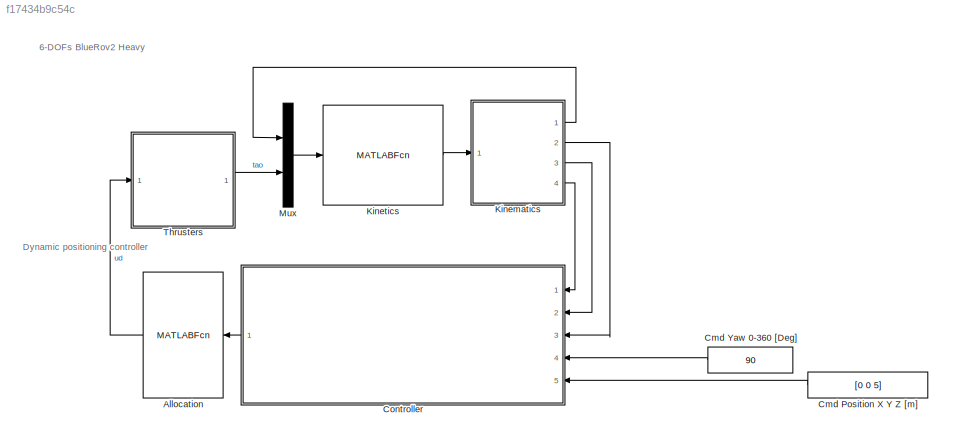
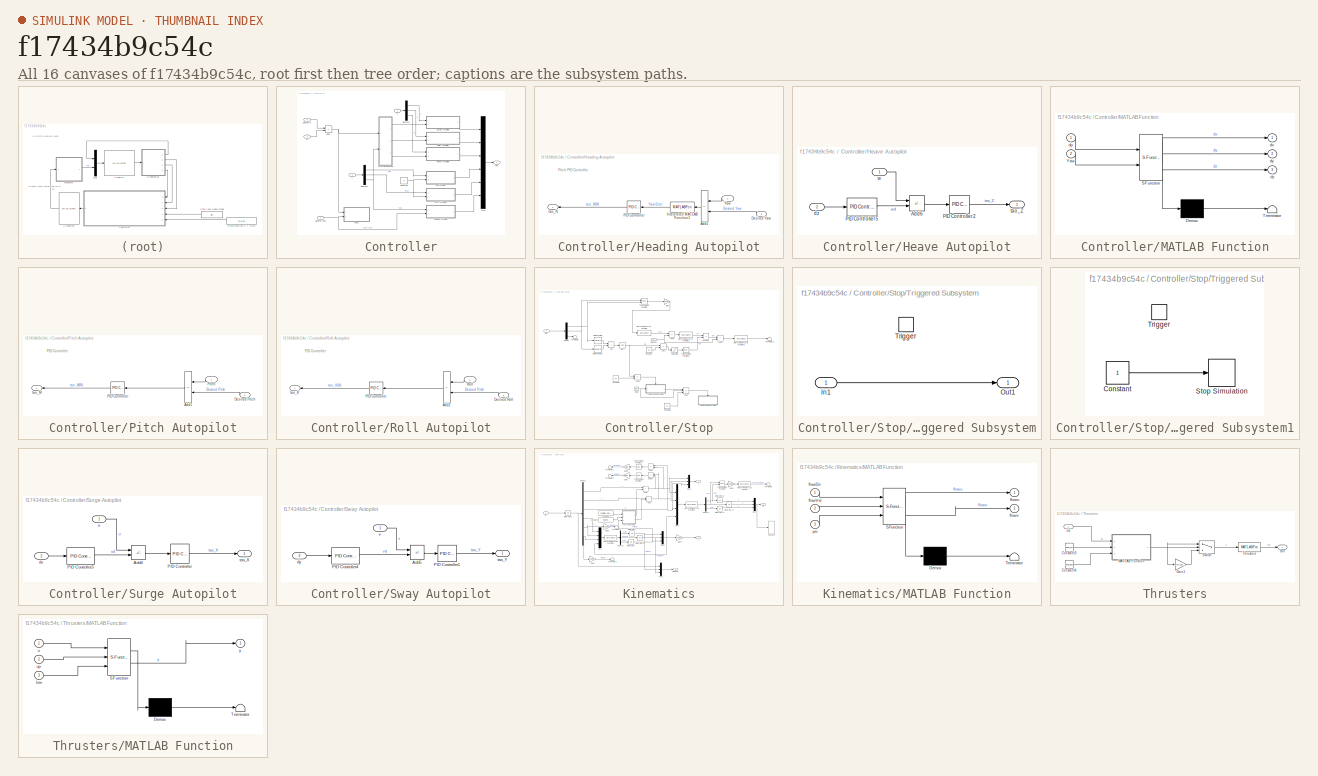
[diagram: thumbnail index - all 16 canvases of the model, root first then tree order]
MODEL slx_f17434b9c54c
KIND model
CONFIG AbsTol = auto
CONFIG EnableMultiTasking = off
CONFIG FixedStep = 0.05
CONFIG InitFcn = initModelParam;
CONFIG MaxStep = auto
CONFIG MinStep = auto
CONFIG RelTol = 1e-3
CONFIG SampleTimeConstraint = Unconstrained
CONFIG SolverName = ode4
CONFIG StartTime = 0.0
CONFIG StopFcn = %plotCoupled3DTrack;
CONFIG StopTime = 60
BLOCK [MATLABFcn] Allocation
  MATLABFcn = allocation
  OutputDimensions = 8
  OutputSignalType = real
  Ports = [1, 1]
BLOCK [Constant] Cmd Position X Y Z [m]
  NameLocation = top
  Value = [0 0 5]
BLOCK [Constant] Cmd Yaw 0-360 [Deg]
  NameLocation = top
  Value = 90
BLOCK [SubSystem] Controller
  Ports = [5, 1]
  RequestExecContextInheritance = off
BLOCK [Inport] Controller/A
  Port = 2
BLOCK [Sum] Controller/Add1
  IconShape = rectangular
  Inputs = +-
  Ports = [2, 1]
BLOCK [Constant] Controller/Constant
  Value = 0
BLOCK [Demux] Controller/Demux1
  Outputs = 3
  Ports = [1, 3]
BLOCK [Demux] Controller/Demux2
  Outputs = 3
  Ports = [1, 3]
BLOCK [Inport] Controller/Desired P
  Port = 5
BLOCK [Inport] Controller/Desired Yaw
  Port = 4
BLOCK [SubSystem] Controller/Heading Autopilot
  NameLocation = top
  Ports = [2, 1]
  RequestExecContextInheritance = off
BLOCK [Sum] Controller/Heading Autopilot/Add1
  IconShape = rectangular
  Inputs = -+
  NameLocation = top
  Ports = [2, 1]
BLOCK [Inport] Controller/Heading Autopilot/Desired Yaw
  Port = 2
BLOCK [MATLABFcn] Controller/Heading Autopilot/Interpreted MATLAB Function1
  MATLABFcn = OrientationErrorDegSat
  NameLocation = top
  OutputDimensions = 1
  Ports = [1, 1]
BLOCK [Reference] Controller/Heading Autopilot/PID Controller  REF=pid_lib/PID Controller
  NameLocation = top
  Ports = [1, 1]
  SourceBlock = pid_lib/PID Controller
  SourceProductBaseCode = SL
  SourceType = PID 1dof
BLOCK [Inport] Controller/Heading Autopilot/Yaw
BLOCK [Outport] Controller/Heading Autopilot/tao_N
  NameLocation = top
BLOCK [SubSystem] Controller/Heave Autopilot
  Ports = [2, 1]
  RequestExecContextInheritance = off
BLOCK [Sum] Controller/Heave Autopilot/Add6
  IconShape = rectangular
  Inputs = -+
  Ports = [2, 1]
BLOCK [Reference] Controller/Heave Autopilot/PID Controller2  REF=pid_lib/PID Controller
  Ports = [1, 1]
  SourceBlock = pid_lib/PID Controller
  SourceProductBaseCode = SL
  SourceType = PID 1dof
BLOCK [Reference] Controller/Heave Autopilot/PID Controller5  REF=pid_lib/PID Controller
  Ports = [1, 1]
  SourceBlock = pid_lib/PID Controller
  SourceProductBaseCode = SL
  SourceType = PID 1dof
BLOCK [Inport] Controller/Heave Autopilot/dz
  Port = 2
BLOCK [Outport] Controller/Heave Autopilot/tao_Z
BLOCK [Inport] Controller/Heave Autopilot/w
BLOCK [SubSystem] Controller/MATLAB Function
  ErrorFcn = Stateflow.Translate.translate
  PermitHierarchicalResolution = ExplicitOnly
  Ports = [2, 3]
  RequestExecContextInheritance = off
  SFBlockType = MATLAB Function
  TreatAsAtomicUnit = on
BLOCK [Demux] Controller/MATLAB Function/ Demux 
  Outputs = 1
  Ports = [1, 1]
BLOCK [S-Function] Controller/MATLAB Function/ SFunction 
  EnableBusSupport = on
  FunctionName = sf_sfun
  PortCounts = [2 4]
  Ports = [2, 4]
  SFcnIsStateOwnerBlock = off
  SFunctionDeploymentMode = off
  Tag = Stateflow S-Function 20
BLOCK [Terminator] Controller/MATLAB Function/ Terminator 
BLOCK [Inport] Controller/MATLAB Function/Yaw
  Port = 2
BLOCK [Inport] Controller/MATLAB Function/dp
BLOCK [Outport] Controller/MATLAB Function/dx
BLOCK [Outport] Controller/MATLAB Function/dy
  Port = 2
BLOCK [Outport] Controller/MATLAB Function/dz
  Port = 3
BLOCK [Mux] Controller/Mux
  DisplayOption = bar
  Inputs = 6
  Ports = [6, 1]
BLOCK [Inport] Controller/P
  Port = 3
BLOCK [SubSystem] Controller/Pitch Autopilot
  NameLocation = top
  Ports = [2, 1]
  RequestExecContextInheritance = off
BLOCK [Sum] Controller/Pitch Autopilot/Add1
  IconShape = rectangular
  Inputs = -+
  NameLocation = top
  Ports = [2, 1]
BLOCK [Inport] Controller/Pitch Autopilot/Desired Pitch
  Port = 2
BLOCK [Reference] Controller/Pitch Autopilot/PID Controller  REF=pid_lib/PID Controller
  NameLocation = top
  Ports = [1, 1]
  SourceBlock = pid_lib/PID Controller
  SourceProductBaseCode = SL
  SourceType = PID 1dof
BLOCK [Inport] Controller/Pitch Autopilot/Pitch
BLOCK [Outport] Controller/Pitch Autopilot/tao_M
  NameLocation = top
BLOCK [SubSystem] Controller/Roll Autopilot
  NameLocation = top
  Ports = [2, 1]
  RequestExecContextInheritance = off
BLOCK [Sum] Controller/Roll Autopilot/Add1
  IconShape = rectangular
  Inputs = -+
  NameLocation = top
  Ports = [2, 1]
BLOCK [Inport] Controller/Roll Autopilot/Desired Roll
  Port = 2
BLOCK [Reference] Controller/Roll Autopilot/PID Controller  REF=pid_lib/PID Controller
  NameLocation = top
  Ports = [1, 1]
  SourceBlock = pid_lib/PID Controller
  SourceProductBaseCode = SL
  SourceType = PID 1dof
BLOCK [Inport] Controller/Roll Autopilot/Roll
BLOCK [Outport] Controller/Roll Autopilot/tao_K
  NameLocation = top
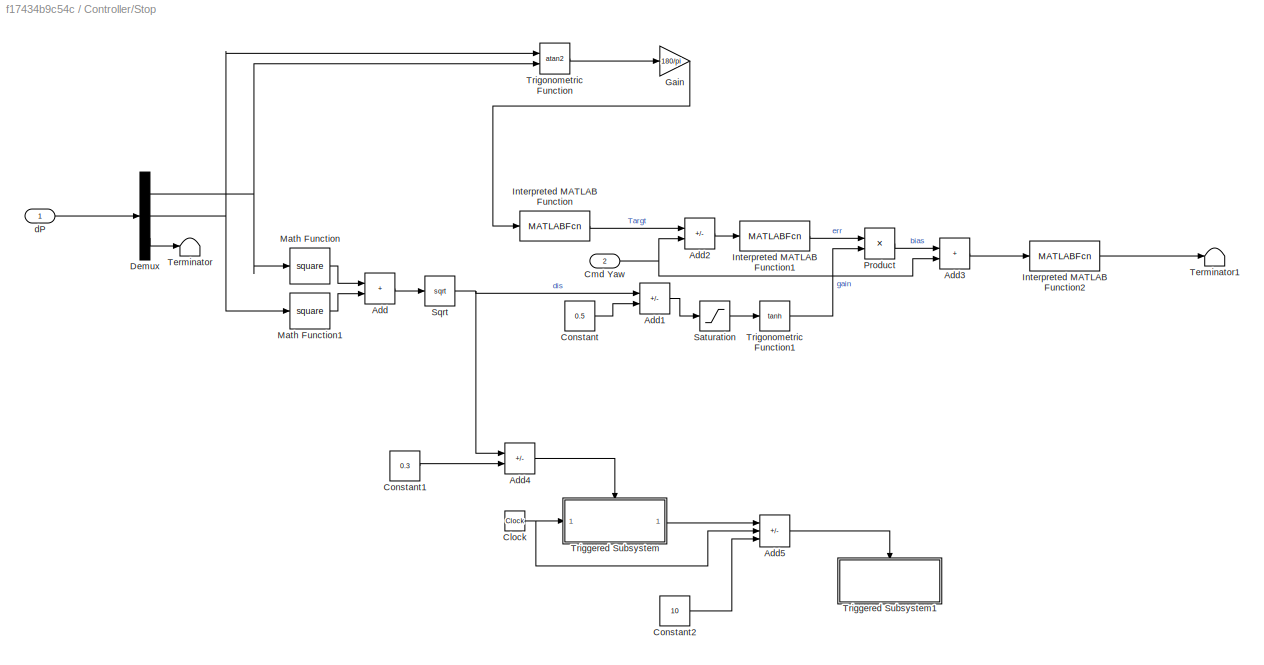
BLOCK [SubSystem] Controller/Stop
  Ports = [2]
  RequestExecContextInheritance = off
BLOCK [Sum] Controller/Stop/Add
  IconShape = rectangular
  Ports = [2, 1]
BLOCK [Sum] Controller/Stop/Add1
  Commented = on
  IconShape = rectangular
  Inputs = +-
  Ports = [2, 1]
BLOCK [Sum] Controller/Stop/Add2
  Commented = on
  IconShape = rectangular
  Inputs = +-
  Ports = [2, 1]
BLOCK [Sum] Controller/Stop/Add3
  Commented = on
  IconShape = rectangular
  Ports = [2, 1]
BLOCK [Sum] Controller/Stop/Add4
  IconShape = rectangular
  Inputs = +-
  Ports = [2, 1]
BLOCK [Sum] Controller/Stop/Add5
  IconShape = rectangular
  Inputs = -+-
  Ports = [3, 1]
BLOCK [Clock] Controller/Stop/Clock
BLOCK [Inport] Controller/Stop/Cmd Yaw
  Port = 2
BLOCK [Constant] Controller/Stop/Constant
  Commented = on
  Value = 0.5
BLOCK [Constant] Controller/Stop/Constant1
  Value = 0.3
BLOCK [Constant] Controller/Stop/Constant2
  Value = 10
BLOCK [Demux] Controller/Stop/Demux
  Outputs = 3
  Ports = [1, 3]
BLOCK [Gain] Controller/Stop/Gain
  Commented = on
  Gain = 180/pi
BLOCK [MATLABFcn] Controller/Stop/Interpreted MATLAB Function
  Commented = on
  MATLABFcn = OrientationDegSat
  OutputDimensions = 1
  Ports = [1, 1]
BLOCK [MATLABFcn] Controller/Stop/Interpreted MATLAB Function1
  Commented = on
  MATLABFcn = OrientationErrorDegSat
  OutputDimensions = 1
  Ports = [1, 1]
BLOCK [MATLABFcn] Controller/Stop/Interpreted MATLAB Function2
  Commented = on
  MATLABFcn = OrientationDegSat
  OutputDimensions = 1
  Ports = [1, 1]
BLOCK [Math] Controller/Stop/Math Function
  Operator = square
  Ports = [1, 1]
BLOCK [Math] Controller/Stop/Math Function1
  Operator = square
  Ports = [1, 1]
BLOCK [Product] Controller/Stop/Product
  Commented = on
  Ports = [2, 1]
BLOCK [Saturate] Controller/Stop/Saturation
  Commented = on
  LowerLimit = 0
  UpperLimit = inf
BLOCK [Sqrt] Controller/Stop/Sqrt
BLOCK [Terminator] Controller/Stop/Terminator
BLOCK [Terminator] Controller/Stop/Terminator1
BLOCK [SubSystem] Controller/Stop/Triggered Subsystem
  Ports = [1, 1, 0, 1]
  RequestExecContextInheritance = off
  TreatAsAtomicUnit = on
BLOCK [Inport] Controller/Stop/Triggered Subsystem/In1
BLOCK [Outport] Controller/Stop/Triggered Subsystem/Out1
  InitialOutput = 1000
BLOCK [TriggerPort] Controller/Stop/Triggered Subsystem/Trigger
  Ports = []
  StatesWhenEnabling = held
  TriggerType = falling
  VariantControl = Variant
BLOCK [SubSystem] Controller/Stop/Triggered Subsystem1
  Ports = [0, 0, 0, 1]
  RequestExecContextInheritance = off
  TreatAsAtomicUnit = on
BLOCK [Constant] Controller/Stop/Triggered Subsystem1/Constant
BLOCK [Stop] Controller/Stop/Triggered Subsystem1/Stop Simulation
BLOCK [TriggerPort] Controller/Stop/Triggered Subsystem1/Trigger
  Ports = []
  StatesWhenEnabling = held
  VariantControl = Variant
BLOCK [Trigonometry] Controller/Stop/Trigonometric Function
  Commented = on
  Operator = atan2
  Ports = [2, 1]
BLOCK [Trigonometry] Controller/Stop/Trigonometric Function1
  Commented = on
  Operator = tanh
  Ports = [1, 1]
BLOCK [Inport] Controller/Stop/dP
BLOCK [SubSystem] Controller/Surge Autopilot
  Ports = [2, 1]
  RequestExecContextInheritance = off
BLOCK [Sum] Controller/Surge Autopilot/Add4
  IconShape = rectangular
  Inputs = -+
  Ports = [2, 1]
BLOCK [Reference] Controller/Surge Autopilot/PID Controller  REF=pid_lib/PID Controller
  Ports = [1, 1]
  SourceBlock = pid_lib/PID Controller
  SourceProductBaseCode = SL
  SourceType = PID 1dof
BLOCK [Reference] Controller/Surge Autopilot/PID Controller3  REF=pid_lib/PID Controller
  Ports = [1, 1]
  SourceBlock = pid_lib/PID Controller
  SourceProductBaseCode = SL
  SourceType = PID 1dof
BLOCK [Inport] Controller/Surge Autopilot/dx
  Port = 2
BLOCK [Outport] Controller/Surge Autopilot/tao_X
BLOCK [Inport] Controller/Surge Autopilot/u
BLOCK [SubSystem] Controller/Sway Autopilot
  Ports = [2, 1]
  RequestExecContextInheritance = off
BLOCK [Sum] Controller/Sway Autopilot/Add5
  IconShape = rectangular
  Inputs = -+
  Ports = [2, 1]
BLOCK [Reference] Controller/Sway Autopilot/PID Controller1  REF=pid_lib/PID Controller
  Ports = [1, 1]
  SourceBlock = pid_lib/PID Controller
  SourceProductBaseCode = SL
  SourceType = PID 1dof
BLOCK [Reference] Controller/Sway Autopilot/PID Controller4  REF=pid_lib/PID Controller
  Ports = [1, 1]
  SourceBlock = pid_lib/PID Controller
  SourceProductBaseCode = SL
  SourceType = PID 1dof
BLOCK [Inport] Controller/Sway Autopilot/dy
  Port = 2
BLOCK [Outport] Controller/Sway Autopilot/tao_Y
BLOCK [Inport] Controller/Sway Autopilot/v
BLOCK [Inport] Controller/U
BLOCK [Outport] Controller/tao
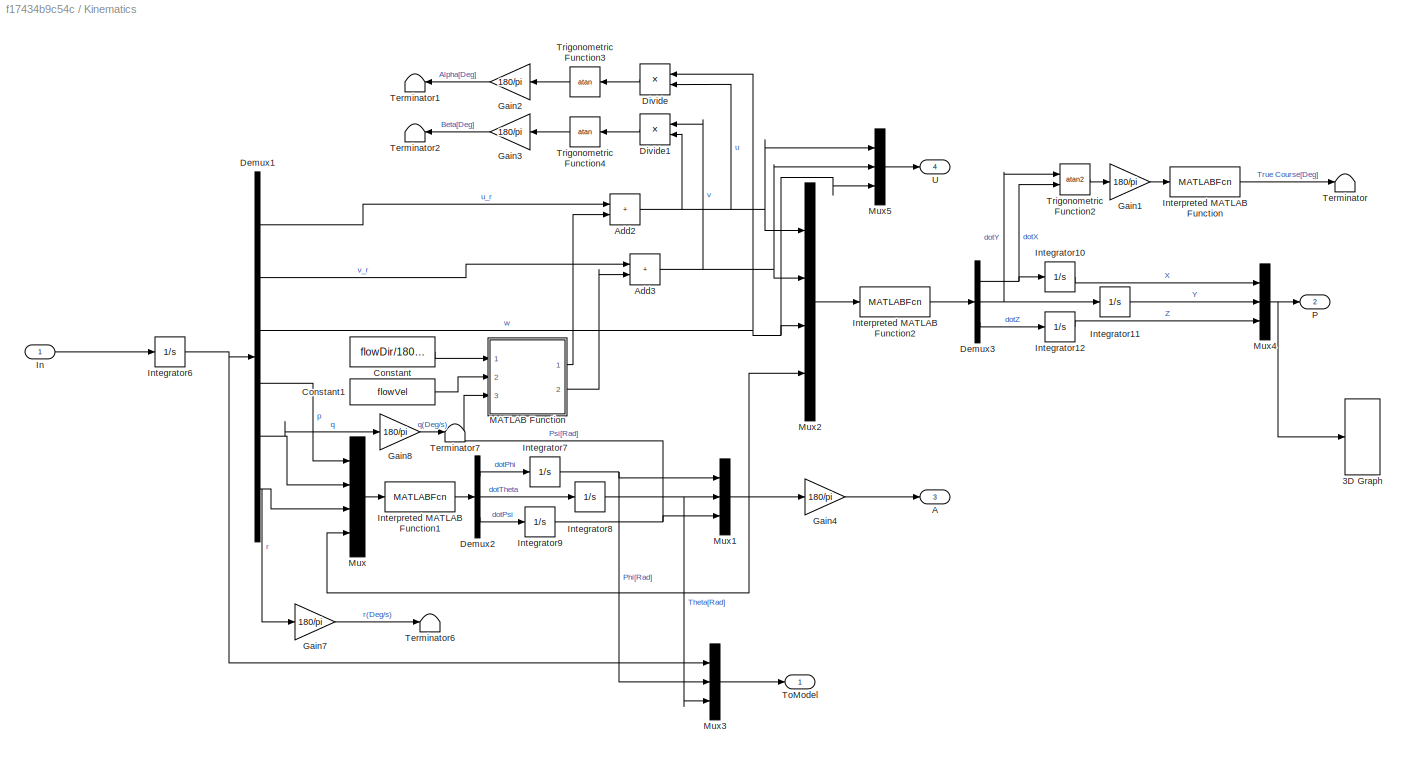
BLOCK [SubSystem] Kinematics
  Ports = [1, 4]
  RequestExecContextInheritance = off
BLOCK [S-Function] Kinematics/3D Graph
  Commented = on
  CopyFcn = if exist('sfun3d','file'), sfun3d([],[],[],'CopyBlock'); end
  DeleteFcn = if exist('sfun3d','file'), sfun3d([],[],[],'DeleteBlock'); end
  EnableBusSupport = off
  FunctionName = sfun3d
  LoadFcn = if exist('sfun3d','file'), sfun3d([],[],[],'LoadBlock'); end
  NameChangeFcn = if exist('sfun3d','file'), sfun3d([],[],[],'NameChange'); end
  Parameters = ax,T,np,cp,gd,ls,mk,mx,hd,tb
  Ports = [1]
  SFcnIsStateOwnerBlock = off
  SFunctionDeploymentMode = off
BLOCK [Outport] Kinematics/A
  Port = 3
BLOCK [Sum] Kinematics/Add2
  IconShape = rectangular
  Ports = [2, 1]
BLOCK [Sum] Kinematics/Add3
  IconShape = rectangular
  Ports = [2, 1]
BLOCK [Constant] Kinematics/Constant
  Value = flowDir/180*pi
BLOCK [Constant] Kinematics/Constant1
  Value = flowVel
BLOCK [Demux] Kinematics/Demux1
  Outputs = 6
  Ports = [1, 6]
BLOCK [Demux] Kinematics/Demux2
  Outputs = 3
  Ports = [1, 3]
BLOCK [Demux] Kinematics/Demux3
  Outputs = 3
  Ports = [1, 3]
BLOCK [Product] Kinematics/Divide
  Inputs = */
  NameLocation = top
  Ports = [2, 1]
BLOCK [Product] Kinematics/Divide1
  Inputs = */
  NameLocation = top
  Ports = [2, 1]
BLOCK [Gain] Kinematics/Gain1
  Gain = 180/pi
BLOCK [Gain] Kinematics/Gain2
  Gain = 180/pi
  NameLocation = top
BLOCK [Gain] Kinematics/Gain3
  Gain = 180/pi
  NameLocation = top
BLOCK [Gain] Kinematics/Gain4
  Gain = 180/pi
BLOCK [Gain] Kinematics/Gain7
  Gain = 180/pi
BLOCK [Gain] Kinematics/Gain8
  Gain = 180/pi
BLOCK [Inport] Kinematics/In
BLOCK [Integrator] Kinematics/Integrator10
  InitialCondition = x0
  Ports = [1, 1]
BLOCK [Integrator] Kinematics/Integrator11
  InitialCondition = y0
  Ports = [1, 1]
BLOCK [Integrator] Kinematics/Integrator12
  InitialCondition = z0
  Ports = [1, 1]
BLOCK [Integrator] Kinematics/Integrator6
  InitialCondition = [u0; 0; 0; 0; 0; 0]
  Ports = [1, 1]
BLOCK [Integrator] Kinematics/Integrator7
  Ports = [1, 1]
BLOCK [Integrator] Kinematics/Integrator8
  Ports = [1, 1]
BLOCK [Integrator] Kinematics/Integrator9
  InitialCondition = yaw0*pi/180
  Ports = [1, 1]
  WrapState = on
  WrappedStateLowerValue = 0
  WrappedStateUpperValue = 6.2832
BLOCK [MATLABFcn] Kinematics/Interpreted MATLAB Function
  MATLABFcn = OrientationDegSat
  Ports = [1, 1]
BLOCK [MATLABFcn] Kinematics/Interpreted MATLAB Function1
  MATLABFcn = TMatrix
  OutputDimensions = 3
  Ports = [1, 1]
BLOCK [MATLABFcn] Kinematics/Interpreted MATLAB Function2
  MATLABFcn = RMatrix
  OutputDimensions = 3
  Ports = [1, 1]
BLOCK [SubSystem] Kinematics/MATLAB Function
  ErrorFcn = Stateflow.Translate.translate
  PermitHierarchicalResolution = ExplicitOnly
  Ports = [3, 2]
  RequestExecContextInheritance = off
  SFBlockType = MATLAB Function
  TreatAsAtomicUnit = on
BLOCK [Demux] Kinematics/MATLAB Function/ Demux 
  Outputs = 1
  Ports = [1, 1]
BLOCK [S-Function] Kinematics/MATLAB Function/ SFunction 
  EnableBusSupport = on
  FunctionName = sf_sfun
  PortCounts = [3 3]
  Ports = [3, 3]
  SFcnIsStateOwnerBlock = off
  SFunctionDeploymentMode = off
  Tag = Stateflow S-Function 3
BLOCK [Terminator] Kinematics/MATLAB Function/ Terminator 
BLOCK [Inport] Kinematics/MATLAB Function/flowDir
BLOCK [Inport] Kinematics/MATLAB Function/flowVel
  Port = 2
BLOCK [Outport] Kinematics/MATLAB Function/flowu
BLOCK [Outport] Kinematics/MATLAB Function/flowv
  Port = 2
BLOCK [Inport] Kinematics/MATLAB Function/psi
  Port = 3
BLOCK [Mux] Kinematics/Mux
  DisplayOption = bar
  Ports = [4, 1]
BLOCK [Mux] Kinematics/Mux1
  DisplayOption = bar
  Inputs = 3
  Ports = [3, 1]
BLOCK [Mux] Kinematics/Mux2
  DisplayOption = bar
  Ports = [4, 1]
BLOCK [Mux] Kinematics/Mux3
  DisplayOption = bar
  Inputs = 3
  Ports = [3, 1]
BLOCK [Mux] Kinematics/Mux4
  DisplayOption = bar
  Inputs = 3
  Ports = [3, 1]
BLOCK [Mux] Kinematics/Mux5
  DisplayOption = bar
  Inputs = 3
  Ports = [3, 1]
BLOCK [Outport] Kinematics/P
  Port = 2
BLOCK [Terminator] Kinematics/Terminator
BLOCK [Terminator] Kinematics/Terminator1
  NameLocation = top
BLOCK [Terminator] Kinematics/Terminator2
  NameLocation = top
BLOCK [Terminator] Kinematics/Terminator6
BLOCK [Terminator] Kinematics/Terminator7
BLOCK [Outport] Kinematics/ToModel
BLOCK [Trigonometry] Kinematics/Trigonometric Function2
  Operator = atan2
  Ports = [2, 1]
BLOCK [Trigonometry] Kinematics/Trigonometric Function3
  NameLocation = top
  Operator = atan
  Ports = [1, 1]
BLOCK [Trigonometry] Kinematics/Trigonometric Function4
  NameLocation = top
  Operator = atan
  Ports = [1, 1]
BLOCK [Outport] Kinematics/U
  Port = 4
BLOCK [MATLABFcn] Kinetics
  MATLABFcn = AuvMathModel
  OutputDimensions = 6
  OutputSignalType = real
  Ports = [1, 1]
BLOCK [Mux] Mux
  DisplayOption = bar
  Inputs = 2
  Ports = [2, 1]
BLOCK [SubSystem] Thrusters
  Ports = [1, 1]
  RequestExecContextInheritance = off
BLOCK [Constant] Thrusters/Constant3
  Value = dead_up
BLOCK [Constant] Thrusters/Constant4
  Value = dead_low
BLOCK [Gain] Thrusters/Gain1
  Gain = asym_gain
BLOCK [SubSystem] Thrusters/MATLAB Function
  ErrorFcn = Stateflow.Translate.translate
  PermitHierarchicalResolution = ExplicitOnly
  Ports = [3, 1]
  RequestExecContextInheritance = off
  SFBlockType = MATLAB Function
  TreatAsAtomicUnit = on
BLOCK [Demux] Thrusters/MATLAB Function/ Demux 
  Outputs = 1
  Ports = [1, 1]
BLOCK [S-Function] Thrusters/MATLAB Function/ SFunction 
  EnableBusSupport = on
  FunctionName = sf_sfun
  PortCounts = [3 2]
  Ports = [3, 2]
  SFcnIsStateOwnerBlock = off
  SFunctionDeploymentMode = off
  Tag = Stateflow S-Function 5
BLOCK [Terminator] Thrusters/MATLAB Function/ Terminator 
BLOCK [Inport] Thrusters/MATLAB Function/low
  Port = 3
BLOCK [Inport] Thrusters/MATLAB Function/u
BLOCK [Inport] Thrusters/MATLAB Function/up
  Port = 2
BLOCK [Outport] Thrusters/MATLAB Function/y
BLOCK [Switch] Thrusters/Switch
  Criteria = u2 > Threshold
  InputSameDT = off
  SaturateOnIntegerOverflow = off
BLOCK [MATLABFcn] Thrusters/Thrusters
  MATLABFcn = thrusters
  OutputDimensions = 6
  OutputSignalType = real
  Ports = [1, 1]
BLOCK [Outport] Thrusters/tao
BLOCK [Inport] Thrusters/ud
  NameLocation = top
ANNOTATION (root): 6-DOFs BlueRov2 Heavy
ANNOTATION (root): Dynamic positioning controller
ANNOTATION Controller/Heading Autopilot: Pitch PID Controller
ANNOTATION Controller/Pitch Autopilot: PID Controller
ANNOTATION Controller/Roll Autopilot: PID Controller
LINE Allocation:1 -> Thrusters:1
LINE Cmd Position X Y Z [m]:1 -> Controller:5
LINE Cmd Yaw 0-360 [Deg]:1 -> Controller:4
LINE Controller/A:1 -> Controller/Demux1:1
NET Controller/Add1:1 -> Controller/MATLAB Function:1, Controller/Stop:1
NET Controller/Constant:1 -> Controller/Pitch Autopilot:2, Controller/Roll Autopilot:2
LINE Controller/Demux1:1 -> Controller/Roll Autopilot:1
LINE Controller/Demux1:2 -> Controller/Pitch Autopilot:1
NET Controller/Demux1:3 -> Controller/Heading Autopilot:1, Controller/MATLAB Function:2
LINE Controller/Demux2:1 -> Controller/Surge Autopilot:1
LINE Controller/Demux2:2 -> Controller/Sway Autopilot:1
LINE Controller/Demux2:3 -> Controller/Heave Autopilot:1
LINE Controller/Desired P:1 -> Controller/Add1:1
NET Controller/Desired Yaw:1 -> Controller/Heading Autopilot:2, Controller/Stop:2
LINE Controller/Heading Autopilot/Add1:1 -> Controller/Heading Autopilot/Interpreted MATLAB Function1:1
LINE Controller/Heading Autopilot/Desired Yaw:1 -> Controller/Heading Autopilot/Add1:2
LINE Controller/Heading Autopilot/Interpreted MATLAB Function1:1 -> Controller/Heading Autopilot/PID Controller:1
LINE Controller/Heading Autopilot/PID Controller:1 -> Controller/Heading Autopilot/tao_N:1
LINE Controller/Heading Autopilot/Yaw:1 -> Controller/Heading Autopilot/Add1:1
LINE Controller/Heading Autopilot:1 -> Controller/Mux:6
LINE Controller/Heave Autopilot/Add6:1 -> Controller/Heave Autopilot/PID Controller2:1
LINE Controller/Heave Autopilot/PID Controller2:1 -> Controller/Heave Autopilot/tao_Z:1
LINE Controller/Heave Autopilot/PID Controller5:1 -> Controller/Heave Autopilot/Add6:2
LINE Controller/Heave Autopilot/dz:1 -> Controller/Heave Autopilot/PID Controller5:1
LINE Controller/Heave Autopilot/w:1 -> Controller/Heave Autopilot/Add6:1
LINE Controller/Heave Autopilot:1 -> Controller/Mux:3
LINE Controller/MATLAB Function:1 -> Controller/Surge Autopilot:2
LINE Controller/MATLAB Function:2 -> Controller/Sway Autopilot:2
LINE Controller/MATLAB Function:3 -> Controller/Heave Autopilot:2
LINE Controller/Mux:1 -> Controller/tao:1
LINE Controller/P:1 -> Controller/Add1:2
LINE Controller/Pitch Autopilot/Add1:1 -> Controller/Pitch Autopilot/PID Controller:1
LINE Controller/Pitch Autopilot/Desired Pitch:1 -> Controller/Pitch Autopilot/Add1:2
LINE Controller/Pitch Autopilot/PID Controller:1 -> Controller/Pitch Autopilot/tao_M:1
LINE Controller/Pitch Autopilot/Pitch:1 -> Controller/Pitch Autopilot/Add1:1
LINE Controller/Pitch Autopilot:1 -> Controller/Mux:5
LINE Controller/Roll Autopilot/Add1:1 -> Controller/Roll Autopilot/PID Controller:1
LINE Controller/Roll Autopilot/Desired Roll:1 -> Controller/Roll Autopilot/Add1:2
LINE Controller/Roll Autopilot/PID Controller:1 -> Controller/Roll Autopilot/tao_K:1
LINE Controller/Roll Autopilot/Roll:1 -> Controller/Roll Autopilot/Add1:1
LINE Controller/Roll Autopilot:1 -> Controller/Mux:4
LINE Controller/Stop/Add1:1 -> Controller/Stop/Saturation:1
LINE Controller/Stop/Add2:1 -> Controller/Stop/Interpreted MATLAB Function1:1
LINE Controller/Stop/Add3:1 -> Controller/Stop/Interpreted MATLAB Function2:1
LINE Controller/Stop/Add4:1 -> Controller/Stop/Triggered Subsystem:trigger
LINE Controller/Stop/Add5:1 -> Controller/Stop/Triggered Subsystem1:trigger
LINE Controller/Stop/Add:1 -> Controller/Stop/Sqrt:1
NET Controller/Stop/Clock:1 -> Controller/Stop/Add5:2, Controller/Stop/Triggered Subsystem:1
NET Controller/Stop/Cmd Yaw:1 -> Controller/Stop/Add2:2, Controller/Stop/Add3:2
LINE Controller/Stop/Constant1:1 -> Controller/Stop/Add4:2
LINE Controller/Stop/Constant2:1 -> Controller/Stop/Add5:3
LINE Controller/Stop/Constant:1 -> Controller/Stop/Add1:2
NET Controller/Stop/Demux:1 -> Controller/Stop/Math Function:1, Controller/Stop/Trigonometric Function:2
NET Controller/Stop/Demux:2 -> Controller/Stop/Math Function1:1, Controller/Stop/Trigonometric Function:1
LINE Controller/Stop/Demux:3 -> Controller/Stop/Terminator:1
LINE Controller/Stop/Gain:1 -> Controller/Stop/Interpreted MATLAB Function:1
LINE Controller/Stop/Interpreted MATLAB Function1:1 -> Controller/Stop/Product:1
LINE Controller/Stop/Interpreted MATLAB Function2:1 -> Controller/Stop/Terminator1:1
LINE Controller/Stop/Interpreted MATLAB Function:1 -> Controller/Stop/Add2:1
LINE Controller/Stop/Math Function1:1 -> Controller/Stop/Add:2
LINE Controller/Stop/Math Function:1 -> Controller/Stop/Add:1
LINE Controller/Stop/Product:1 -> Controller/Stop/Add3:1
LINE Controller/Stop/Saturation:1 -> Controller/Stop/Trigonometric Function1:1
NET Controller/Stop/Sqrt:1 -> Controller/Stop/Add1:1, Controller/Stop/Add4:1
LINE Controller/Stop/Triggered Subsystem/In1:1 -> Controller/Stop/Triggered Subsystem/Out1:1
LINE Controller/Stop/Triggered Subsystem1/Constant:1 -> Controller/Stop/Triggered Subsystem1/Stop Simulation:1
LINE Controller/Stop/Triggered Subsystem:1 -> Controller/Stop/Add5:1
LINE Controller/Stop/Trigonometric Function1:1 -> Controller/Stop/Product:2
LINE Controller/Stop/Trigonometric Function:1 -> Controller/Stop/Gain:1
LINE Controller/Stop/dP:1 -> Controller/Stop/Demux:1
LINE Controller/Surge Autopilot/Add4:1 -> Controller/Surge Autopilot/PID Controller:1
LINE Controller/Surge Autopilot/PID Controller3:1 -> Controller/Surge Autopilot/Add4:2
LINE Controller/Surge Autopilot/PID Controller:1 -> Controller/Surge Autopilot/tao_X:1
LINE Controller/Surge Autopilot/dx:1 -> Controller/Surge Autopilot/PID Controller3:1
LINE Controller/Surge Autopilot/u:1 -> Controller/Surge Autopilot/Add4:1
LINE Controller/Surge Autopilot:1 -> Controller/Mux:1
LINE Controller/Sway Autopilot/Add5:1 -> Controller/Sway Autopilot/PID Controller1:1
LINE Controller/Sway Autopilot/PID Controller1:1 -> Controller/Sway Autopilot/tao_Y:1
LINE Controller/Sway Autopilot/PID Controller4:1 -> Controller/Sway Autopilot/Add5:2
LINE Controller/Sway Autopilot/dy:1 -> Controller/Sway Autopilot/PID Controller4:1
LINE Controller/Sway Autopilot/v:1 -> Controller/Sway Autopilot/Add5:1
LINE Controller/Sway Autopilot:1 -> Controller/Mux:2
LINE Controller/U:1 -> Controller/Demux2:1
LINE Controller:1 -> Allocation:1
NET Kinematics/Add2:1 -> Kinematics/Divide1:2, Kinematics/Divide:2, Kinematics/Mux2:1, Kinematics/Mux5:1
NET Kinematics/Add3:1 -> Kinematics/Divide1:1, Kinematics/Mux2:2, Kinematics/Mux5:2
LINE Kinematics/Constant1:1 -> Kinematics/MATLAB Function:2
LINE Kinematics/Constant:1 -> Kinematics/MATLAB Function:1
LINE Kinematics/Demux1:1 -> Kinematics/Add2:1
LINE Kinematics/Demux1:2 -> Kinematics/Add3:1
NET Kinematics/Demux1:3 -> Kinematics/Divide:1, Kinematics/Mux2:3, Kinematics/Mux5:3
LINE Kinematics/Demux1:4 -> Kinematics/Mux:1
NET Kinematics/Demux1:5 -> Kinematics/Gain8:1, Kinematics/Mux:2
NET Kinematics/Demux1:6 -> Kinematics/Gain7:1, Kinematics/Mux:3
LINE Kinematics/Demux2:1 -> Kinematics/Integrator7:1
LINE Kinematics/Demux2:2 -> Kinematics/Integrator8:1
LINE Kinematics/Demux2:3 -> Kinematics/Integrator9:1
NET Kinematics/Demux3:1 -> Kinematics/Integrator10:1, Kinematics/Trigonometric Function2:2
NET Kinematics/Demux3:2 -> Kinematics/Integrator11:1, Kinematics/Trigonometric Function2:1
LINE Kinematics/Demux3:3 -> Kinematics/Integrator12:1
LINE Kinematics/Divide1:1 -> Kinematics/Trigonometric Function4:1
LINE Kinematics/Divide:1 -> Kinematics/Trigonometric Function3:1
LINE Kinematics/Gain1:1 -> Kinematics/Interpreted MATLAB Function:1
LINE Kinematics/Gain2:1 -> Kinematics/Terminator1:1
LINE Kinematics/Gain3:1 -> Kinematics/Terminator2:1
LINE Kinematics/Gain4:1 -> Kinematics/A:1
LINE Kinematics/Gain7:1 -> Kinematics/Terminator6:1
LINE Kinematics/Gain8:1 -> Kinematics/Terminator7:1
LINE Kinematics/In:1 -> Kinematics/Integrator6:1
LINE Kinematics/Integrator10:1 -> Kinematics/Mux4:1
LINE Kinematics/Integrator11:1 -> Kinematics/Mux4:2
LINE Kinematics/Integrator12:1 -> Kinematics/Mux4:3
NET Kinematics/Integrator6:1 -> Kinematics/Demux1:1, Kinematics/Mux3:1
NET Kinematics/Integrator7:1 -> Kinematics/Mux1:1, Kinematics/Mux3:2
NET Kinematics/Integrator8:1 -> Kinematics/Mux1:2, Kinematics/Mux3:3
NET Kinematics/Integrator9:1 -> Kinematics/MATLAB Function:3, Kinematics/Mux1:3
LINE Kinematics/Interpreted MATLAB Function1:1 -> Kinematics/Demux2:1
LINE Kinematics/Interpreted MATLAB Function2:1 -> Kinematics/Demux3:1
LINE Kinematics/Interpreted MATLAB Function:1 -> Kinematics/Terminator:1
LINE Kinematics/MATLAB Function:1 -> Kinematics/Add2:2
LINE Kinematics/MATLAB Function:2 -> Kinematics/Add3:2
NET Kinematics/Mux1:1 -> Kinematics/Gain4:1, Kinematics/Mux2:4, Kinematics/Mux:4
LINE Kinematics/Mux2:1 -> Kinematics/Interpreted MATLAB Function2:1
LINE Kinematics/Mux3:1 -> Kinematics/ToModel:1
NET Kinematics/Mux4:1 -> Kinematics/3D Graph:1, Kinematics/P:1
LINE Kinematics/Mux5:1 -> Kinematics/U:1
LINE Kinematics/Mux:1 -> Kinematics/Interpreted MATLAB Function1:1
LINE Kinematics/Trigonometric Function2:1 -> Kinematics/Gain1:1
LINE Kinematics/Trigonometric Function3:1 -> Kinematics/Gain2:1
LINE Kinematics/Trigonometric Function4:1 -> Kinematics/Gain3:1
LINE Kinematics:1 -> Mux:1
LINE Kinematics:2 -> Controller:3
LINE Kinematics:3 -> Controller:2
LINE Kinematics:4 -> Controller:1
LINE Kinetics:1 -> Kinematics:1
LINE Mux:1 -> Kinetics:1
LINE Thrusters/Constant3:1 -> Thrusters/MATLAB Function:2
LINE Thrusters/Constant4:1 -> Thrusters/MATLAB Function:3
LINE Thrusters/Gain1:1 -> Thrusters/Switch:3
NET Thrusters/MATLAB Function:1 -> Thrusters/Gain1:1, Thrusters/Switch:1, Thrusters/Switch:2
LINE Thrusters/Switch:1 -> Thrusters/Thrusters:1
LINE Thrusters/Thrusters:1 -> Thrusters/tao:1
LINE Thrusters/ud:1 -> Thrusters/MATLAB Function:1
LINE Thrusters:1 -> Mux:2
note: NET lines group one-source signal fan-out (src -> all destinations, sorted); 1:1 wires keep LINE
CHART Kinematics/MATLAB Function states=1 transitions=1
  STATE_LABEL 'eML_blk_kernel()'
  STATE_LABEL 'SCRIPT:\nfunction [flowu,flowv] = fcn(flowDir,flowVel,psi)\ndAngle = flowDir - psi;\nif dAngle > 2*pi\n    dAngle = dAngle-2*pi;\nelseif dAngle<0\n    dAngle = dAngle+2*pi;\nend\nflowu = flowVel*cos(dAngle);\nflowv = flowVel*sin(dAngle);\n'
CHART Thrusters/MATLAB Function states=1 transitions=1
  STATE_LABEL 'eML_blk_kernel()'
  STATE_LABEL 'SCRIPT:\nfunction y = fcn(u,up,low)\ny = u;\nfor i=1:8\n    if y(i) < up && y(i) >low\n        y(i) = 0;\n    end\nend\nend\n'
CHART Controller/MATLAB Function states=1 transitions=1
  STATE_LABEL 'eML_blk_kernel()'
  STATE_LABEL 'SCRIPT:\nfunction [dx,dy,dz] = fcn(dp,Yaw)\npsi = Yaw/180*pi;\ny = [cos(psi) sin(psi); -sin(psi) cos(psi)]*dp(1:2);\ndx = y(1);\ndy = y(2);\ndz = dp(3);\n'
CHART  states=0 transitions=0
CHART  states=0 transitions=0
CHART  states=0 transitions=0
